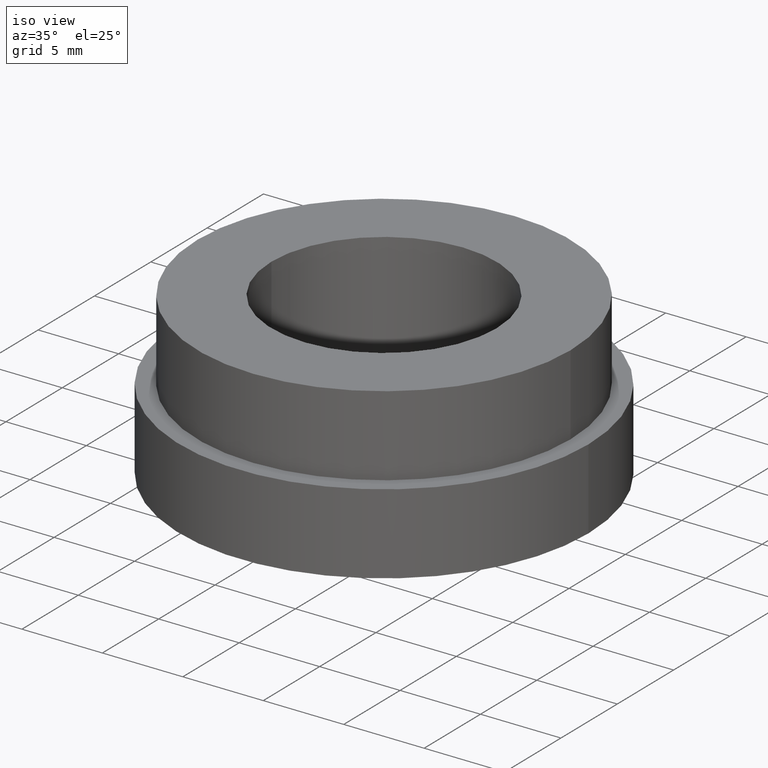
[diagram: clean part render]
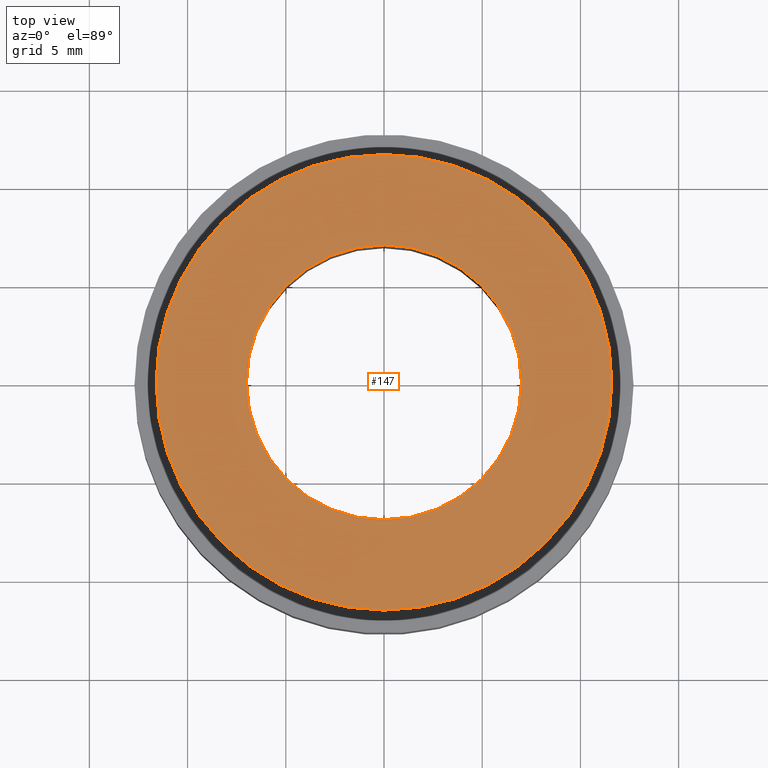
[diagram: tour spotlight — one face highlighted and labeled with its STEP entity id]
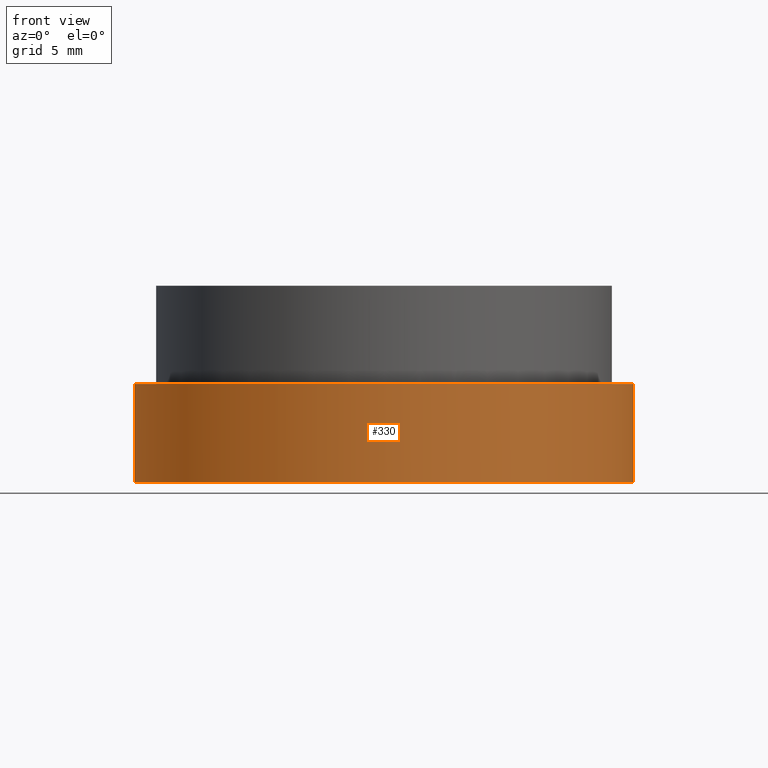
[diagram: tour spotlight — one face highlighted and labeled with its STEP entity id]
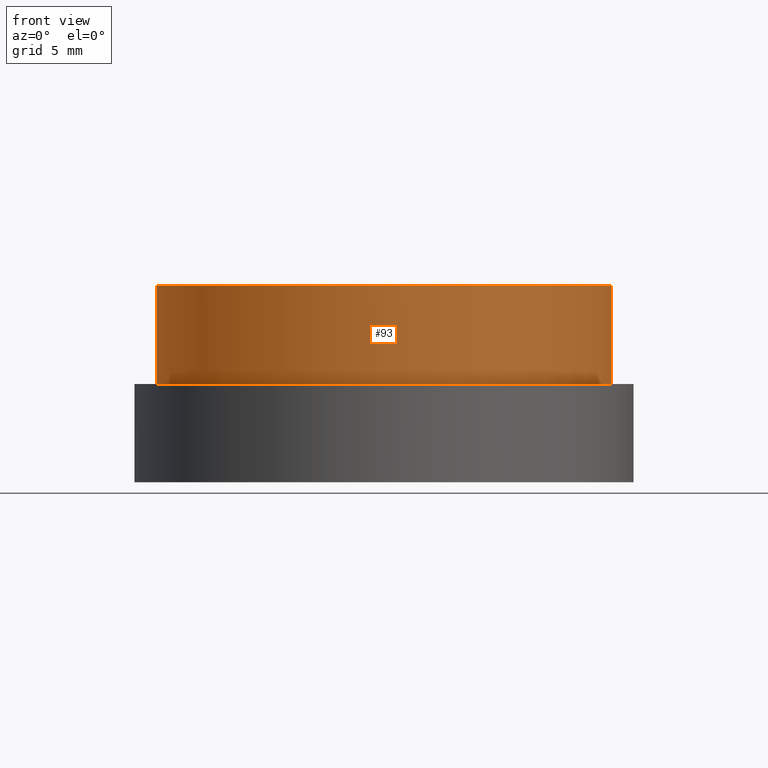
[diagram: tour spotlight — one face highlighted and labeled with its STEP entity id]
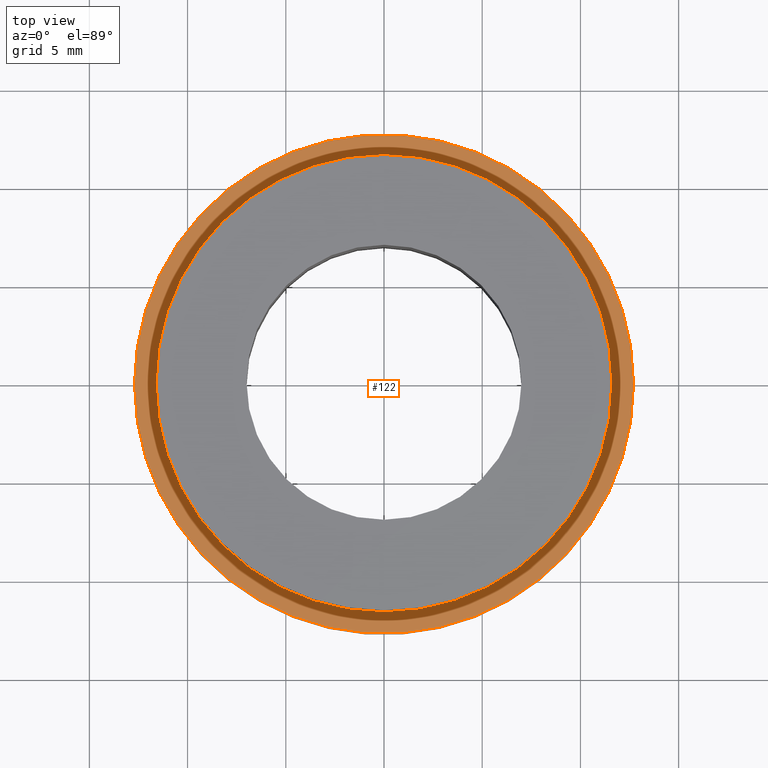
[diagram: tour spotlight — one face highlighted and labeled with its STEP entity id]
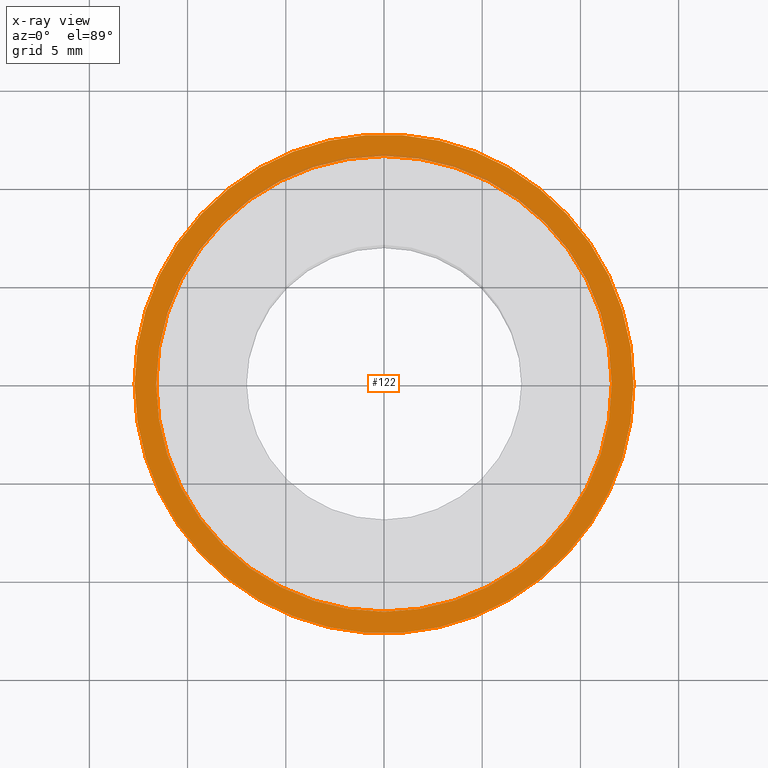
[diagram: x-ray of the same camera — body ghosted, this tour face saturated]
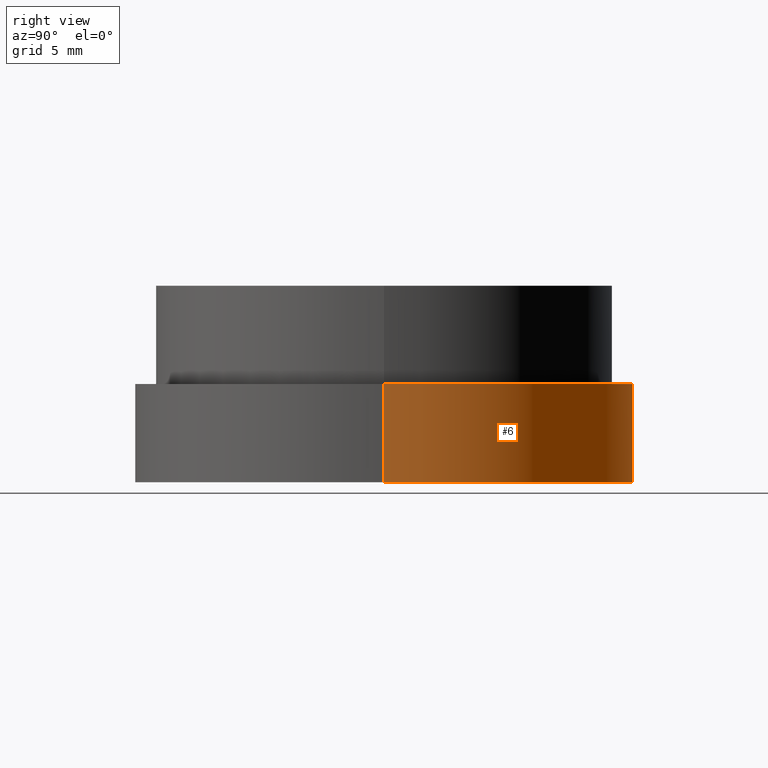
[diagram: tour spotlight — one face highlighted and labeled with its STEP entity id]
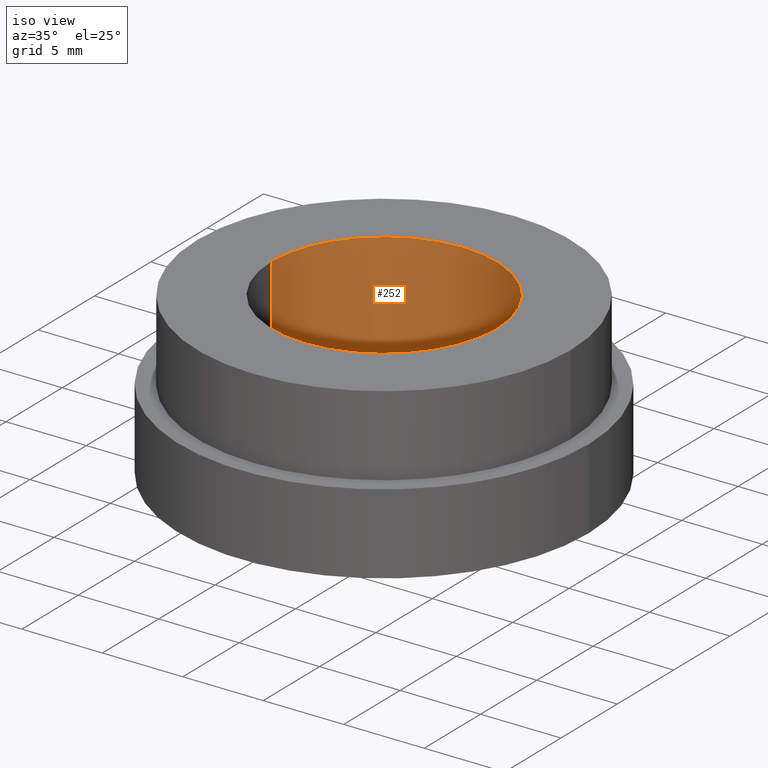
[diagram: tour spotlight — one face highlighted and labeled with its STEP entity id]
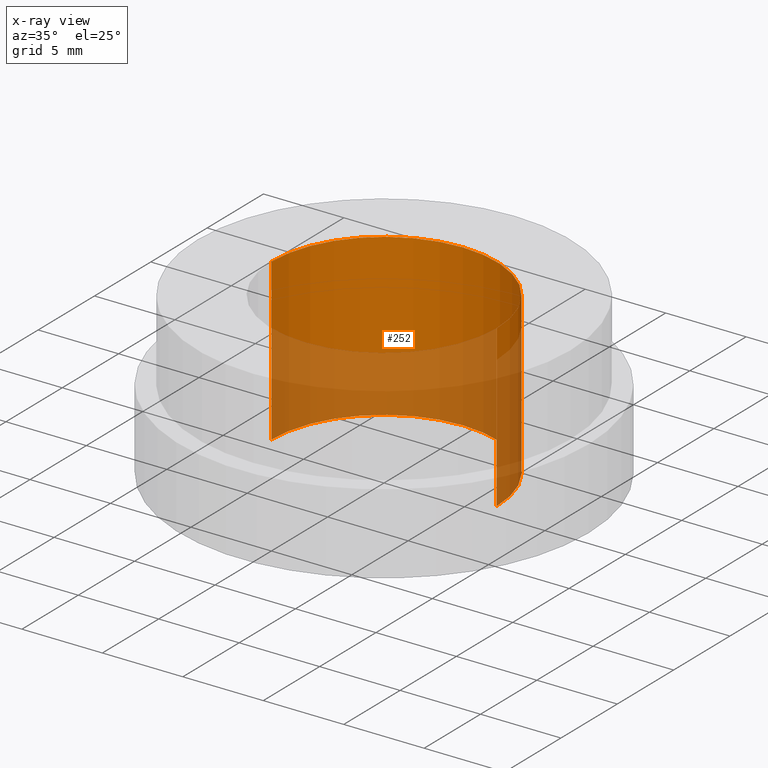
[diagram: x-ray of the same camera — body ghosted, this tour face saturated]
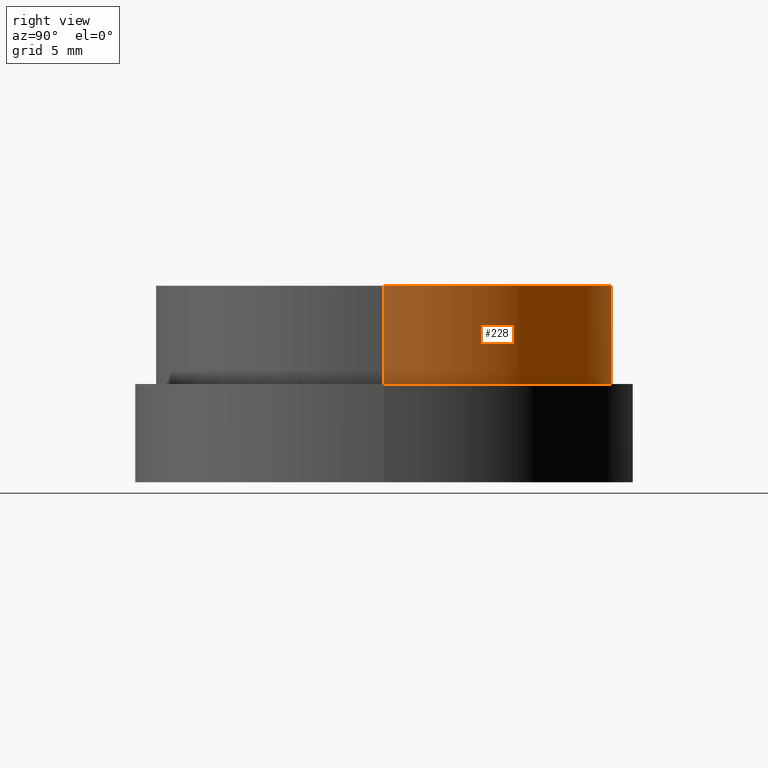
[diagram: tour spotlight — one face highlighted and labeled with its STEP entity id]
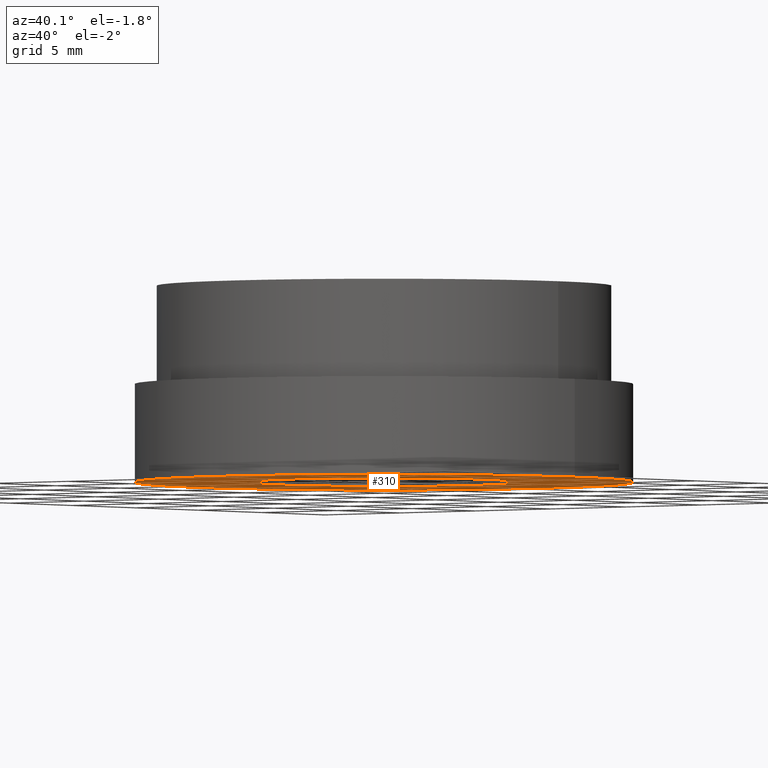
[diagram: tour spotlight — one face highlighted and labeled with its STEP entity id]
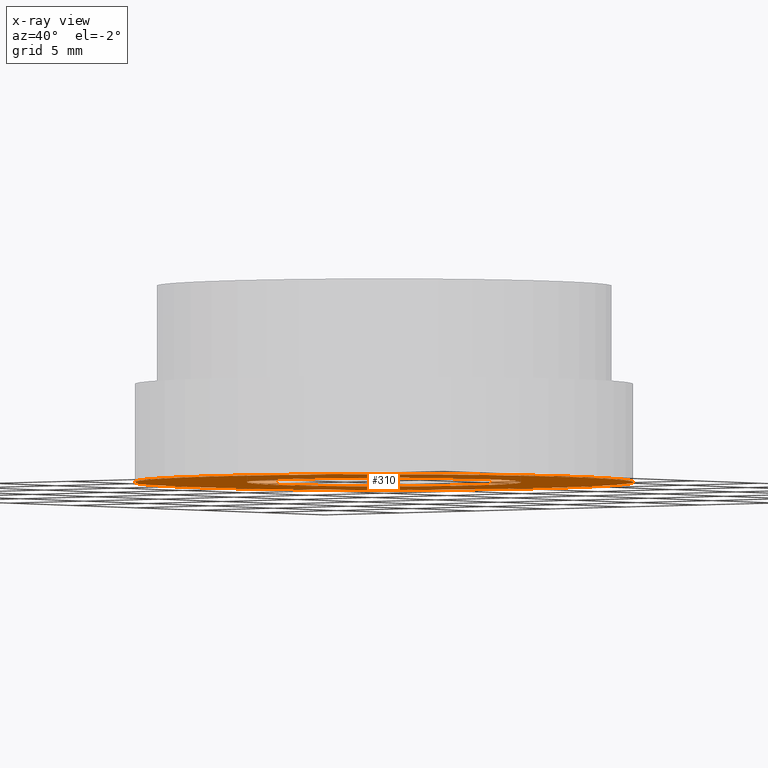
[diagram: x-ray of the same camera — body ghosted, this tour face saturated]
A machine part: a face-by-face anatomy tour. The part has 9 B-rep faces; the first image is the clean iso view, then the 8 largest visible faces are spotlighted one at a time (largest first), each with its STEP entity span.

Face 1 — top view, entity #147. In plain terms, the highlighted planar face has unit normal (-0, 0, -1).
Definition (entity closure, byte-faithful):
#11 = FACE_OUTER_BOUND ( 'NONE', #83, .T. ) ;
#13 = CARTESIAN_POINT ( 'NONE',  ( 0.0000000000000000000, 0.0000000000000000000, 0.0000000000000000000 ) ) ;
#25 = EDGE_CURVE ( 'NONE', #312, #139, #39, .T. ) ;
#35 = CARTESIAN_POINT ( 'NONE',  ( -7.000000000000001800, 0.0000000000000000000, 0.0000000000000000000 ) ) ;
#39 = CIRCLE ( 'NONE', #54, 11.60000000000000100 ) ;
#41 = DIRECTION ( 'NONE',  ( -0.0000000000000000000, -0.0000000000000000000, -1.000000000000000000 ) ) ;
#42 = ORIENTED_EDGE ( 'NONE', *, *, #152, .F. ) ;
#46 = ORIENTED_EDGE ( 'NONE', *, *, #78, .T. ) ;
#54 = AXIS2_PLACEMENT_3D ( 'NONE', #161, #130, #288 ) ;
#56 = EDGE_CURVE ( 'NONE', #197, #176, #125, .T. ) ;
#65 = CARTESIAN_POINT ( 'NONE',  ( 0.0000000000000000000, 0.0000000000000000000, 0.0000000000000000000 ) ) ;
#78 = EDGE_CURVE ( 'NONE', #176, #197, #290, .T. ) ;
#83 = EDGE_LOOP ( 'NONE', ( #317, #42 ) ) ;
#90 = FACE_BOUND ( 'NONE', #291, .T. ) ;
#120 = DIRECTION ( 'NONE',  ( -1.000000000000000000, 0.0000000000000000000, 0.0000000000000000000 ) ) ;
#124 = AXIS2_PLACEMENT_3D ( 'NONE', #234, #41, #207 ) ;
#125 = CIRCLE ( 'NONE', #205, 7.000000000000001800 ) ;
#130 = DIRECTION ( 'NONE',  ( -0.0000000000000000000, -0.0000000000000000000, -1.000000000000000000 ) ) ;
#139 = VERTEX_POINT ( 'NONE', #232 ) ;
#146 = DIRECTION ( 'NONE',  ( -0.0000000000000000000, -0.0000000000000000000, -1.000000000000000000 ) ) ;
#147 = ADVANCED_FACE ( 'NONE', ( #11, #90 ), #260, .F. ) ;
#152 = EDGE_CURVE ( 'NONE', #139, #312, #155, .T. ) ;
#154 = DIRECTION ( 'NONE',  ( -1.000000000000000000, 0.0000000000000000000, 0.0000000000000000000 ) ) ;
#155 = CIRCLE ( 'NONE', #295, 11.60000000000000100 ) ;
#161 = CARTESIAN_POINT ( 'NONE',  ( 0.0000000000000000000, 0.0000000000000000000, 0.0000000000000000000 ) ) ;
#175 = AXIS2_PLACEMENT_3D ( 'NONE', #238, #185, #341 ) ;
#176 = VERTEX_POINT ( 'NONE', #250 ) ;
#185 = DIRECTION ( 'NONE',  ( -0.0000000000000000000, 0.0000000000000000000, -1.000000000000000000 ) ) ;
#197 = VERTEX_POINT ( 'NONE', #35 ) ;
#205 = AXIS2_PLACEMENT_3D ( 'NONE', #13, #206, #154 ) ;
#206 = DIRECTION ( 'NONE',  ( -0.0000000000000000000, -0.0000000000000000000, -1.000000000000000000 ) ) ;
#207 = DIRECTION ( 'NONE',  ( -1.000000000000000000, 0.0000000000000000000, 0.0000000000000000000 ) ) ;
#232 = CARTESIAN_POINT ( 'NONE',  ( 11.60000000000000100, 1.420590287010929700E-015, 0.0000000000000000000 ) ) ;
#234 = CARTESIAN_POINT ( 'NONE',  ( 0.0000000000000000000, 0.0000000000000000000, 0.0000000000000000000 ) ) ;
#238 = CARTESIAN_POINT ( 'NONE',  ( 7.000000000000001800, 0.0000000000000000000, 0.0000000000000000000 ) ) ;
#250 = CARTESIAN_POINT ( 'NONE',  ( 7.000000000000001800, 8.572527594031474200E-016, 0.0000000000000000000 ) ) ;
#254 = ORIENTED_EDGE ( 'NONE', *, *, #56, .T. ) ;
#260 = PLANE ( 'NONE',  #175 ) ;
#267 = CARTESIAN_POINT ( 'NONE',  ( -11.60000000000000100, 0.0000000000000000000, 0.0000000000000000000 ) ) ;
#288 = DIRECTION ( 'NONE',  ( -1.000000000000000000, 0.0000000000000000000, 0.0000000000000000000 ) ) ;
#290 = CIRCLE ( 'NONE', #124, 7.000000000000001800 ) ;
#291 = EDGE_LOOP ( 'NONE', ( #254, #46 ) ) ;
#295 = AXIS2_PLACEMENT_3D ( 'NONE', #65, #146, #120 ) ;
#312 = VERTEX_POINT ( 'NONE', #267 ) ;
#317 = ORIENTED_EDGE ( 'NONE', *, *, #25, .F. ) ;
#341 = DIRECTION ( 'NONE',  ( -1.000000000000000000, 0.0000000000000000000, 0.0000000000000000000 ) ) ;

Face 2 — front view, entity #330. In plain terms, the highlighted cylindrical surface (partial cylindrical patch) has radius 12.7 mm, axis along (-0, -0, -1).
Definition (entity closure, byte-faithful):
#8 = VERTEX_POINT ( 'NONE', #343 ) ;
#10 = DIRECTION ( 'NONE',  ( -0.0000000000000000000, -0.0000000000000000000, -1.000000000000000000 ) ) ;
#27 = CARTESIAN_POINT ( 'NONE',  ( 0.0000000000000000000, 0.0000000000000000000, -19.14057971014493000 ) ) ;
#28 = AXIS2_PLACEMENT_3D ( 'NONE', #27, #167, #320 ) ;
#29 = DIRECTION ( 'NONE',  ( -0.0000000000000000000, -0.0000000000000000000, -1.000000000000000000 ) ) ;
#50 = FACE_OUTER_BOUND ( 'NONE', #344, .T. ) ;
#60 = VECTOR ( 'NONE', #111, 1000.000000000000000 ) ;
#62 = VECTOR ( 'NONE', #136, 1000.000000000000000 ) ;
#82 = CARTESIAN_POINT ( 'NONE',  ( 12.70000000000000300, 1.555301434917138800E-015, -10.00000000000000000 ) ) ;
#100 = CARTESIAN_POINT ( 'NONE',  ( 0.0000000000000000000, 0.0000000000000000000, -10.00000000000000000 ) ) ;
#111 = DIRECTION ( 'NONE',  ( -0.0000000000000000000, -0.0000000000000000000, -1.000000000000000000 ) ) ;
#121 = ORIENTED_EDGE ( 'NONE', *, *, #275, .T. ) ;
#136 = DIRECTION ( 'NONE',  ( -0.0000000000000000000, -0.0000000000000000000, -1.000000000000000000 ) ) ;
#150 = EDGE_CURVE ( 'NONE', #307, #237, #226, .T. ) ;
#164 = ORIENTED_EDGE ( 'NONE', *, *, #328, .F. ) ;
#167 = DIRECTION ( 'NONE',  ( -0.0000000000000000000, -0.0000000000000000000, -1.000000000000000000 ) ) ;
#191 = DIRECTION ( 'NONE',  ( -1.000000000000000000, 0.0000000000000000000, 0.0000000000000000000 ) ) ;
#217 = CARTESIAN_POINT ( 'NONE',  ( 12.69999999999999900, 1.555301434917138400E-015, -19.14057971014493000 ) ) ;
#218 = CARTESIAN_POINT ( 'NONE',  ( 0.0000000000000000000, 0.0000000000000000000, -5.000000000000000900 ) ) ;
#226 = CIRCLE ( 'NONE', #327, 12.70000000000000100 ) ;
#237 = VERTEX_POINT ( 'NONE', #301 ) ;
#256 = CYLINDRICAL_SURFACE ( 'NONE', #28, 12.69999999999999900 ) ;
#263 = LINE ( 'NONE', #298, #62 ) ;
#265 = LINE ( 'NONE', #217, #60 ) ;
#266 = CARTESIAN_POINT ( 'NONE',  ( -12.69999999999999900, 0.0000000000000000000, -5.000000000000000900 ) ) ;
#275 = EDGE_CURVE ( 'NONE', #8, #354, #331, .T. ) ;
#282 = ORIENTED_EDGE ( 'NONE', *, *, #336, .T. ) ;
#286 = AXIS2_PLACEMENT_3D ( 'NONE', #218, #29, #191 ) ;
#298 = CARTESIAN_POINT ( 'NONE',  ( -12.69999999999999900, 0.0000000000000000000, -19.14057971014493000 ) ) ;
#300 = ORIENTED_EDGE ( 'NONE', *, *, #150, .F. ) ;
#301 = CARTESIAN_POINT ( 'NONE',  ( -12.70000000000000100, 0.0000000000000000000, -10.00000000000000000 ) ) ;
#307 = VERTEX_POINT ( 'NONE', #82 ) ;
#320 = DIRECTION ( 'NONE',  ( -1.000000000000000000, 0.0000000000000000000, 0.0000000000000000000 ) ) ;
#327 = AXIS2_PLACEMENT_3D ( 'NONE', #100, #10, #332 ) ;
#328 = EDGE_CURVE ( 'NONE', #8, #307, #265, .T. ) ;
#330 = ADVANCED_FACE ( 'NONE', ( #50 ), #256, .T. ) ;
#331 = CIRCLE ( 'NONE', #286, 12.69999999999999900 ) ;
#332 = DIRECTION ( 'NONE',  ( -1.000000000000000000, 0.0000000000000000000, 0.0000000000000000000 ) ) ;
#336 = EDGE_CURVE ( 'NONE', #354, #237, #263, .T. ) ;
#343 = CARTESIAN_POINT ( 'NONE',  ( 12.69999999999999900, 1.555301434917138400E-015, -5.000000000000000900 ) ) ;
#344 = EDGE_LOOP ( 'NONE', ( #164, #121, #282, #300 ) ) ;
#354 = VERTEX_POINT ( 'NONE', #266 ) ;

Face 3 — front view, entity #93. In plain terms, the highlighted cylindrical surface (partial cylindrical patch) has radius 11.6 mm, axis along (-0, -0, -1).
Definition (entity closure, byte-faithful):
#30 = VERTEX_POINT ( 'NONE', #259 ) ;
#37 = AXIS2_PLACEMENT_3D ( 'NONE', #342, #181, #99 ) ;
#52 = EDGE_LOOP ( 'NONE', ( #231, #244, #129, #180 ) ) ;
#61 = DIRECTION ( 'NONE',  ( -0.0000000000000000000, -0.0000000000000000000, -1.000000000000000000 ) ) ;
#65 = CARTESIAN_POINT ( 'NONE',  ( 0.0000000000000000000, 0.0000000000000000000, 0.0000000000000000000 ) ) ;
#72 = VECTOR ( 'NONE', #198, 1000.000000000000000 ) ;
#74 = FACE_OUTER_BOUND ( 'NONE', #52, .T. ) ;
#89 = CARTESIAN_POINT ( 'NONE',  ( 11.60000000000000100, 1.420590287010929700E-015, -19.14057971014493000 ) ) ;
#93 = ADVANCED_FACE ( 'NONE', ( #74 ), #163, .T. ) ;
#99 = DIRECTION ( 'NONE',  ( -1.000000000000000000, 0.0000000000000000000, 0.0000000000000000000 ) ) ;
#120 = DIRECTION ( 'NONE',  ( -1.000000000000000000, 0.0000000000000000000, 0.0000000000000000000 ) ) ;
#129 = ORIENTED_EDGE ( 'NONE', *, *, #302, .T. ) ;
#139 = VERTEX_POINT ( 'NONE', #232 ) ;
#146 = DIRECTION ( 'NONE',  ( -0.0000000000000000000, -0.0000000000000000000, -1.000000000000000000 ) ) ;
#152 = EDGE_CURVE ( 'NONE', #139, #312, #155, .T. ) ;
#155 = CIRCLE ( 'NONE', #295, 11.60000000000000100 ) ;
#163 = CYLINDRICAL_SURFACE ( 'NONE', #37, 11.60000000000000100 ) ;
#174 = EDGE_CURVE ( 'NONE', #248, #30, #305, .T. ) ;
#180 = ORIENTED_EDGE ( 'NONE', *, *, #174, .F. ) ;
#181 = DIRECTION ( 'NONE',  ( -0.0000000000000000000, -0.0000000000000000000, -1.000000000000000000 ) ) ;
#186 = EDGE_CURVE ( 'NONE', #139, #248, #214, .T. ) ;
#188 = AXIS2_PLACEMENT_3D ( 'NONE', #249, #61, #224 ) ;
#198 = DIRECTION ( 'NONE',  ( -0.0000000000000000000, -0.0000000000000000000, -1.000000000000000000 ) ) ;
#214 = LINE ( 'NONE', #89, #72 ) ;
#224 = DIRECTION ( 'NONE',  ( -1.000000000000000000, 0.0000000000000000000, 0.0000000000000000000 ) ) ;
#231 = ORIENTED_EDGE ( 'NONE', *, *, #186, .F. ) ;
#232 = CARTESIAN_POINT ( 'NONE',  ( 11.60000000000000100, 1.420590287010929700E-015, 0.0000000000000000000 ) ) ;
#244 = ORIENTED_EDGE ( 'NONE', *, *, #152, .T. ) ;
#248 = VERTEX_POINT ( 'NONE', #323 ) ;
#249 = CARTESIAN_POINT ( 'NONE',  ( 0.0000000000000000000, 0.0000000000000000000, -5.000000000000000900 ) ) ;
#259 = CARTESIAN_POINT ( 'NONE',  ( -11.60000000000000100, 0.0000000000000000000, -5.000000000000000900 ) ) ;
#267 = CARTESIAN_POINT ( 'NONE',  ( -11.60000000000000100, 0.0000000000000000000, 0.0000000000000000000 ) ) ;
#279 = LINE ( 'NONE', #321, #349 ) ;
#295 = AXIS2_PLACEMENT_3D ( 'NONE', #65, #146, #120 ) ;
#299 = DIRECTION ( 'NONE',  ( -0.0000000000000000000, -0.0000000000000000000, -1.000000000000000000 ) ) ;
#302 = EDGE_CURVE ( 'NONE', #312, #30, #279, .T. ) ;
#305 = CIRCLE ( 'NONE', #188, 11.60000000000000100 ) ;
#312 = VERTEX_POINT ( 'NONE', #267 ) ;
#321 = CARTESIAN_POINT ( 'NONE',  ( -11.60000000000000100, 0.0000000000000000000, -19.14057971014493000 ) ) ;
#323 = CARTESIAN_POINT ( 'NONE',  ( 11.60000000000000100, 1.420590287010929700E-015, -5.000000000000000900 ) ) ;
#342 = CARTESIAN_POINT ( 'NONE',  ( 0.0000000000000000000, 0.0000000000000000000, -19.14057971014493000 ) ) ;
#349 = VECTOR ( 'NONE', #299, 1000.000000000000000 ) ;

Face 4 — top view, entity #122. An x-ray twin of the same camera follows (body ghosted, this face saturated) — the face is partly hidden behind the body. In plain terms, the highlighted planar face has unit normal (-0, 0, -1).
Definition (entity closure, byte-faithful):
#4 = EDGE_CURVE ( 'NONE', #30, #248, #162, .T. ) ;
#8 = VERTEX_POINT ( 'NONE', #343 ) ;
#20 = DIRECTION ( 'NONE',  ( -1.000000000000000000, 0.0000000000000000000, 0.0000000000000000000 ) ) ;
#22 = FACE_OUTER_BOUND ( 'NONE', #106, .T. ) ;
#29 = DIRECTION ( 'NONE',  ( -0.0000000000000000000, -0.0000000000000000000, -1.000000000000000000 ) ) ;
#30 = VERTEX_POINT ( 'NONE', #259 ) ;
#38 = AXIS2_PLACEMENT_3D ( 'NONE', #315, #159, #20 ) ;
#61 = DIRECTION ( 'NONE',  ( -0.0000000000000000000, -0.0000000000000000000, -1.000000000000000000 ) ) ;
#70 = PLANE ( 'NONE',  #348 ) ;
#94 = ORIENTED_EDGE ( 'NONE', *, *, #4, .T. ) ;
#96 = FACE_BOUND ( 'NONE', #151, .T. ) ;
#103 = ORIENTED_EDGE ( 'NONE', *, *, #275, .F. ) ;
#106 = EDGE_LOOP ( 'NONE', ( #333, #103 ) ) ;
#119 = DIRECTION ( 'NONE',  ( -1.000000000000000000, 0.0000000000000000000, 0.0000000000000000000 ) ) ;
#122 = ADVANCED_FACE ( 'NONE', ( #22, #96 ), #70, .F. ) ;
#143 = DIRECTION ( 'NONE',  ( -0.0000000000000000000, 0.0000000000000000000, -1.000000000000000000 ) ) ;
#151 = EDGE_LOOP ( 'NONE', ( #94, #271 ) ) ;
#153 = AXIS2_PLACEMENT_3D ( 'NONE', #199, #306, #119 ) ;
#157 = EDGE_CURVE ( 'NONE', #354, #8, #296, .T. ) ;
#159 = DIRECTION ( 'NONE',  ( -0.0000000000000000000, -0.0000000000000000000, -1.000000000000000000 ) ) ;
#162 = CIRCLE ( 'NONE', #38, 11.60000000000000100 ) ;
#174 = EDGE_CURVE ( 'NONE', #248, #30, #305, .T. ) ;
#177 = CARTESIAN_POINT ( 'NONE',  ( 11.60000000000000100, 0.0000000000000000000, -5.000000000000000000 ) ) ;
#188 = AXIS2_PLACEMENT_3D ( 'NONE', #249, #61, #224 ) ;
#191 = DIRECTION ( 'NONE',  ( -1.000000000000000000, 0.0000000000000000000, 0.0000000000000000000 ) ) ;
#199 = CARTESIAN_POINT ( 'NONE',  ( 0.0000000000000000000, 0.0000000000000000000, -5.000000000000000900 ) ) ;
#218 = CARTESIAN_POINT ( 'NONE',  ( 0.0000000000000000000, 0.0000000000000000000, -5.000000000000000900 ) ) ;
#224 = DIRECTION ( 'NONE',  ( -1.000000000000000000, 0.0000000000000000000, 0.0000000000000000000 ) ) ;
#248 = VERTEX_POINT ( 'NONE', #323 ) ;
#249 = CARTESIAN_POINT ( 'NONE',  ( 0.0000000000000000000, 0.0000000000000000000, -5.000000000000000900 ) ) ;
#259 = CARTESIAN_POINT ( 'NONE',  ( -11.60000000000000100, 0.0000000000000000000, -5.000000000000000900 ) ) ;
#266 = CARTESIAN_POINT ( 'NONE',  ( -12.69999999999999900, 0.0000000000000000000, -5.000000000000000900 ) ) ;
#271 = ORIENTED_EDGE ( 'NONE', *, *, #174, .T. ) ;
#275 = EDGE_CURVE ( 'NONE', #8, #354, #331, .T. ) ;
#286 = AXIS2_PLACEMENT_3D ( 'NONE', #218, #29, #191 ) ;
#296 = CIRCLE ( 'NONE', #153, 12.69999999999999900 ) ;
#305 = CIRCLE ( 'NONE', #188, 11.60000000000000100 ) ;
#306 = DIRECTION ( 'NONE',  ( -0.0000000000000000000, -0.0000000000000000000, -1.000000000000000000 ) ) ;
#315 = CARTESIAN_POINT ( 'NONE',  ( 0.0000000000000000000, 0.0000000000000000000, -5.000000000000000900 ) ) ;
#323 = CARTESIAN_POINT ( 'NONE',  ( 11.60000000000000100, 1.420590287010929700E-015, -5.000000000000000900 ) ) ;
#326 = DIRECTION ( 'NONE',  ( -1.000000000000000000, 0.0000000000000000000, 0.0000000000000000000 ) ) ;
#331 = CIRCLE ( 'NONE', #286, 12.69999999999999900 ) ;
#333 = ORIENTED_EDGE ( 'NONE', *, *, #157, .F. ) ;
#343 = CARTESIAN_POINT ( 'NONE',  ( 12.69999999999999900, 1.555301434917138400E-015, -5.000000000000000900 ) ) ;
#348 = AXIS2_PLACEMENT_3D ( 'NONE', #177, #143, #326 ) ;
#354 = VERTEX_POINT ( 'NONE', #266 ) ;

Face 5 — right view, entity #6. In plain terms, the highlighted cylindrical surface (partial cylindrical patch) has radius 12.7 mm, axis along (-0, -0, -1).
Definition (entity closure, byte-faithful):
#6 = ADVANCED_FACE ( 'NONE', ( #79 ), #149, .T. ) ;
#8 = VERTEX_POINT ( 'NONE', #343 ) ;
#17 = EDGE_CURVE ( 'NONE', #237, #307, #220, .T. ) ;
#19 = DIRECTION ( 'NONE',  ( -1.000000000000000000, 0.0000000000000000000, 0.0000000000000000000 ) ) ;
#44 = DIRECTION ( 'NONE',  ( -1.000000000000000000, 0.0000000000000000000, 0.0000000000000000000 ) ) ;
#60 = VECTOR ( 'NONE', #111, 1000.000000000000000 ) ;
#62 = VECTOR ( 'NONE', #136, 1000.000000000000000 ) ;
#73 = CARTESIAN_POINT ( 'NONE',  ( 0.0000000000000000000, 0.0000000000000000000, -10.00000000000000000 ) ) ;
#79 = FACE_OUTER_BOUND ( 'NONE', #329, .T. ) ;
#82 = CARTESIAN_POINT ( 'NONE',  ( 12.70000000000000300, 1.555301434917138800E-015, -10.00000000000000000 ) ) ;
#88 = AXIS2_PLACEMENT_3D ( 'NONE', #73, #236, #44 ) ;
#91 = ORIENTED_EDGE ( 'NONE', *, *, #17, .F. ) ;
#111 = DIRECTION ( 'NONE',  ( -0.0000000000000000000, -0.0000000000000000000, -1.000000000000000000 ) ) ;
#117 = ORIENTED_EDGE ( 'NONE', *, *, #157, .T. ) ;
#119 = DIRECTION ( 'NONE',  ( -1.000000000000000000, 0.0000000000000000000, 0.0000000000000000000 ) ) ;
#131 = DIRECTION ( 'NONE',  ( -0.0000000000000000000, -0.0000000000000000000, -1.000000000000000000 ) ) ;
#136 = DIRECTION ( 'NONE',  ( -0.0000000000000000000, -0.0000000000000000000, -1.000000000000000000 ) ) ;
#144 = ORIENTED_EDGE ( 'NONE', *, *, #336, .F. ) ;
#149 = CYLINDRICAL_SURFACE ( 'NONE', #350, 12.69999999999999900 ) ;
#153 = AXIS2_PLACEMENT_3D ( 'NONE', #199, #306, #119 ) ;
#157 = EDGE_CURVE ( 'NONE', #354, #8, #296, .T. ) ;
#199 = CARTESIAN_POINT ( 'NONE',  ( 0.0000000000000000000, 0.0000000000000000000, -5.000000000000000900 ) ) ;
#209 = CARTESIAN_POINT ( 'NONE',  ( 0.0000000000000000000, 0.0000000000000000000, -19.14057971014493000 ) ) ;
#210 = ORIENTED_EDGE ( 'NONE', *, *, #328, .T. ) ;
#217 = CARTESIAN_POINT ( 'NONE',  ( 12.69999999999999900, 1.555301434917138400E-015, -19.14057971014493000 ) ) ;
#220 = CIRCLE ( 'NONE', #88, 12.70000000000000100 ) ;
#236 = DIRECTION ( 'NONE',  ( -0.0000000000000000000, -0.0000000000000000000, -1.000000000000000000 ) ) ;
#237 = VERTEX_POINT ( 'NONE', #301 ) ;
#263 = LINE ( 'NONE', #298, #62 ) ;
#265 = LINE ( 'NONE', #217, #60 ) ;
#266 = CARTESIAN_POINT ( 'NONE',  ( -12.69999999999999900, 0.0000000000000000000, -5.000000000000000900 ) ) ;
#296 = CIRCLE ( 'NONE', #153, 12.69999999999999900 ) ;
#298 = CARTESIAN_POINT ( 'NONE',  ( -12.69999999999999900, 0.0000000000000000000, -19.14057971014493000 ) ) ;
#301 = CARTESIAN_POINT ( 'NONE',  ( -12.70000000000000100, 0.0000000000000000000, -10.00000000000000000 ) ) ;
#306 = DIRECTION ( 'NONE',  ( -0.0000000000000000000, -0.0000000000000000000, -1.000000000000000000 ) ) ;
#307 = VERTEX_POINT ( 'NONE', #82 ) ;
#328 = EDGE_CURVE ( 'NONE', #8, #307, #265, .T. ) ;
#329 = EDGE_LOOP ( 'NONE', ( #117, #210, #91, #144 ) ) ;
#336 = EDGE_CURVE ( 'NONE', #354, #237, #263, .T. ) ;
#343 = CARTESIAN_POINT ( 'NONE',  ( 12.69999999999999900, 1.555301434917138400E-015, -5.000000000000000900 ) ) ;
#350 = AXIS2_PLACEMENT_3D ( 'NONE', #209, #131, #19 ) ;
#354 = VERTEX_POINT ( 'NONE', #266 ) ;

Face 6 — iso view, entity #252. An x-ray twin of the same camera follows (body ghosted, this face saturated) — the face is partly hidden behind the body. In plain terms, the highlighted cylindrical surface (partial cylindrical patch) has radius 7 mm, axis along (-0, -0, -1).
Definition (entity closure, byte-faithful):
#13 = CARTESIAN_POINT ( 'NONE',  ( 0.0000000000000000000, 0.0000000000000000000, 0.0000000000000000000 ) ) ;
#23 = ORIENTED_EDGE ( 'NONE', *, *, #294, .T. ) ;
#26 = DIRECTION ( 'NONE',  ( -0.0000000000000000000, -0.0000000000000000000, -1.000000000000000000 ) ) ;
#35 = CARTESIAN_POINT ( 'NONE',  ( -7.000000000000001800, 0.0000000000000000000, 0.0000000000000000000 ) ) ;
#40 = ORIENTED_EDGE ( 'NONE', *, *, #347, .F. ) ;
#47 = LINE ( 'NONE', #84, #170 ) ;
#51 = CARTESIAN_POINT ( 'NONE',  ( 7.000000000000002700, 8.572527594031475200E-016, -19.14057971014493000 ) ) ;
#56 = EDGE_CURVE ( 'NONE', #197, #176, #125, .T. ) ;
#63 = ORIENTED_EDGE ( 'NONE', *, *, #56, .F. ) ;
#66 = ORIENTED_EDGE ( 'NONE', *, *, #202, .T. ) ;
#84 = CARTESIAN_POINT ( 'NONE',  ( -7.000000000000002700, 0.0000000000000000000, -19.14057971014493000 ) ) ;
#86 = DIRECTION ( 'NONE',  ( -1.000000000000000000, 0.0000000000000000000, 0.0000000000000000000 ) ) ;
#105 = VECTOR ( 'NONE', #26, 1000.000000000000000 ) ;
#113 = CARTESIAN_POINT ( 'NONE',  ( -7.000000000000002700, 0.0000000000000000000, -9.999999999999998200 ) ) ;
#115 = CARTESIAN_POINT ( 'NONE',  ( 0.0000000000000000000, 0.0000000000000000000, -9.999999999999998200 ) ) ;
#125 = CIRCLE ( 'NONE', #205, 7.000000000000001800 ) ;
#137 = CYLINDRICAL_SURFACE ( 'NONE', #309, 7.000000000000002700 ) ;
#138 = DIRECTION ( 'NONE',  ( -0.0000000000000000000, -0.0000000000000000000, -1.000000000000000000 ) ) ;
#154 = DIRECTION ( 'NONE',  ( -1.000000000000000000, 0.0000000000000000000, 0.0000000000000000000 ) ) ;
#168 = DIRECTION ( 'NONE',  ( -0.0000000000000000000, -0.0000000000000000000, -1.000000000000000000 ) ) ;
#169 = CARTESIAN_POINT ( 'NONE',  ( 0.0000000000000000000, 0.0000000000000000000, -19.14057971014493000 ) ) ;
#170 = VECTOR ( 'NONE', #168, 1000.000000000000000 ) ;
#172 = FACE_OUTER_BOUND ( 'NONE', #187, .T. ) ;
#176 = VERTEX_POINT ( 'NONE', #250 ) ;
#187 = EDGE_LOOP ( 'NONE', ( #40, #63, #23, #66 ) ) ;
#197 = VERTEX_POINT ( 'NONE', #35 ) ;
#202 = EDGE_CURVE ( 'NONE', #262, #285, #204, .T. ) ;
#204 = CIRCLE ( 'NONE', #241, 7.000000000000002700 ) ;
#205 = AXIS2_PLACEMENT_3D ( 'NONE', #13, #206, #154 ) ;
#206 = DIRECTION ( 'NONE',  ( -0.0000000000000000000, -0.0000000000000000000, -1.000000000000000000 ) ) ;
#241 = AXIS2_PLACEMENT_3D ( 'NONE', #115, #270, #86 ) ;
#250 = CARTESIAN_POINT ( 'NONE',  ( 7.000000000000001800, 8.572527594031474200E-016, 0.0000000000000000000 ) ) ;
#252 = ADVANCED_FACE ( 'NONE', ( #172 ), #137, .F. ) ;
#262 = VERTEX_POINT ( 'NONE', #113 ) ;
#268 = CARTESIAN_POINT ( 'NONE',  ( 7.000000000000002700, 8.572527594031475200E-016, -9.999999999999998200 ) ) ;
#270 = DIRECTION ( 'NONE',  ( -0.0000000000000000000, -0.0000000000000000000, -1.000000000000000000 ) ) ;
#285 = VERTEX_POINT ( 'NONE', #268 ) ;
#294 = EDGE_CURVE ( 'NONE', #197, #262, #47, .T. ) ;
#309 = AXIS2_PLACEMENT_3D ( 'NONE', #169, #138, #322 ) ;
#322 = DIRECTION ( 'NONE',  ( -1.000000000000000000, 0.0000000000000000000, 0.0000000000000000000 ) ) ;
#335 = LINE ( 'NONE', #51, #105 ) ;
#347 = EDGE_CURVE ( 'NONE', #176, #285, #335, .T. ) ;

Face 7 — right view, entity #228. In plain terms, the highlighted cylindrical surface (partial cylindrical patch) has radius 11.6 mm, axis along (-0, -0, -1).
Definition (entity closure, byte-faithful):
#4 = EDGE_CURVE ( 'NONE', #30, #248, #162, .T. ) ;
#20 = DIRECTION ( 'NONE',  ( -1.000000000000000000, 0.0000000000000000000, 0.0000000000000000000 ) ) ;
#25 = EDGE_CURVE ( 'NONE', #312, #139, #39, .T. ) ;
#30 = VERTEX_POINT ( 'NONE', #259 ) ;
#32 = CYLINDRICAL_SURFACE ( 'NONE', #215, 11.60000000000000100 ) ;
#36 = ORIENTED_EDGE ( 'NONE', *, *, #186, .T. ) ;
#38 = AXIS2_PLACEMENT_3D ( 'NONE', #315, #159, #20 ) ;
#39 = CIRCLE ( 'NONE', #54, 11.60000000000000100 ) ;
#54 = AXIS2_PLACEMENT_3D ( 'NONE', #161, #130, #288 ) ;
#72 = VECTOR ( 'NONE', #198, 1000.000000000000000 ) ;
#75 = EDGE_LOOP ( 'NONE', ( #221, #36, #112, #85 ) ) ;
#85 = ORIENTED_EDGE ( 'NONE', *, *, #302, .F. ) ;
#89 = CARTESIAN_POINT ( 'NONE',  ( 11.60000000000000100, 1.420590287010929700E-015, -19.14057971014493000 ) ) ;
#112 = ORIENTED_EDGE ( 'NONE', *, *, #4, .F. ) ;
#130 = DIRECTION ( 'NONE',  ( -0.0000000000000000000, -0.0000000000000000000, -1.000000000000000000 ) ) ;
#139 = VERTEX_POINT ( 'NONE', #232 ) ;
#140 = DIRECTION ( 'NONE',  ( -0.0000000000000000000, -0.0000000000000000000, -1.000000000000000000 ) ) ;
#141 = FACE_OUTER_BOUND ( 'NONE', #75, .T. ) ;
#159 = DIRECTION ( 'NONE',  ( -0.0000000000000000000, -0.0000000000000000000, -1.000000000000000000 ) ) ;
#161 = CARTESIAN_POINT ( 'NONE',  ( 0.0000000000000000000, 0.0000000000000000000, 0.0000000000000000000 ) ) ;
#162 = CIRCLE ( 'NONE', #38, 11.60000000000000100 ) ;
#171 = DIRECTION ( 'NONE',  ( -1.000000000000000000, 0.0000000000000000000, 0.0000000000000000000 ) ) ;
#186 = EDGE_CURVE ( 'NONE', #139, #248, #214, .T. ) ;
#198 = DIRECTION ( 'NONE',  ( -0.0000000000000000000, -0.0000000000000000000, -1.000000000000000000 ) ) ;
#214 = LINE ( 'NONE', #89, #72 ) ;
#215 = AXIS2_PLACEMENT_3D ( 'NONE', #303, #140, #171 ) ;
#221 = ORIENTED_EDGE ( 'NONE', *, *, #25, .T. ) ;
#228 = ADVANCED_FACE ( 'NONE', ( #141 ), #32, .T. ) ;
#232 = CARTESIAN_POINT ( 'NONE',  ( 11.60000000000000100, 1.420590287010929700E-015, 0.0000000000000000000 ) ) ;
#248 = VERTEX_POINT ( 'NONE', #323 ) ;
#259 = CARTESIAN_POINT ( 'NONE',  ( -11.60000000000000100, 0.0000000000000000000, -5.000000000000000900 ) ) ;
#267 = CARTESIAN_POINT ( 'NONE',  ( -11.60000000000000100, 0.0000000000000000000, 0.0000000000000000000 ) ) ;
#279 = LINE ( 'NONE', #321, #349 ) ;
#288 = DIRECTION ( 'NONE',  ( -1.000000000000000000, 0.0000000000000000000, 0.0000000000000000000 ) ) ;
#299 = DIRECTION ( 'NONE',  ( -0.0000000000000000000, -0.0000000000000000000, -1.000000000000000000 ) ) ;
#302 = EDGE_CURVE ( 'NONE', #312, #30, #279, .T. ) ;
#303 = CARTESIAN_POINT ( 'NONE',  ( 0.0000000000000000000, 0.0000000000000000000, -19.14057971014493000 ) ) ;
#312 = VERTEX_POINT ( 'NONE', #267 ) ;
#315 = CARTESIAN_POINT ( 'NONE',  ( 0.0000000000000000000, 0.0000000000000000000, -5.000000000000000900 ) ) ;
#321 = CARTESIAN_POINT ( 'NONE',  ( -11.60000000000000100, 0.0000000000000000000, -19.14057971014493000 ) ) ;
#323 = CARTESIAN_POINT ( 'NONE',  ( 11.60000000000000100, 1.420590287010929700E-015, -5.000000000000000900 ) ) ;
#349 = VECTOR ( 'NONE', #299, 1000.000000000000000 ) ;

Face 8 — auxiliary view, entity #310. An x-ray twin of the same camera follows (body ghosted, this face saturated) — the face is partly hidden behind the body. In plain terms, the highlighted planar face has unit normal (0, 0, 1).
Definition (entity closure, byte-faithful):
#9 = ORIENTED_EDGE ( 'NONE', *, *, #202, .F. ) ;
#10 = DIRECTION ( 'NONE',  ( -0.0000000000000000000, -0.0000000000000000000, -1.000000000000000000 ) ) ;
#17 = EDGE_CURVE ( 'NONE', #237, #307, #220, .T. ) ;
#44 = DIRECTION ( 'NONE',  ( -1.000000000000000000, 0.0000000000000000000, 0.0000000000000000000 ) ) ;
#49 = AXIS2_PLACEMENT_3D ( 'NONE', #273, #308, #278 ) ;
#53 = DIRECTION ( 'NONE',  ( 1.000000000000000000, 0.0000000000000000000, -0.0000000000000000000 ) ) ;
#73 = CARTESIAN_POINT ( 'NONE',  ( 0.0000000000000000000, 0.0000000000000000000, -10.00000000000000000 ) ) ;
#80 = PLANE ( 'NONE',  #340 ) ;
#82 = CARTESIAN_POINT ( 'NONE',  ( 12.70000000000000300, 1.555301434917138800E-015, -10.00000000000000000 ) ) ;
#86 = DIRECTION ( 'NONE',  ( -1.000000000000000000, 0.0000000000000000000, 0.0000000000000000000 ) ) ;
#88 = AXIS2_PLACEMENT_3D ( 'NONE', #73, #236, #44 ) ;
#97 = EDGE_LOOP ( 'NONE', ( #240, #203 ) ) ;
#98 = EDGE_CURVE ( 'NONE', #285, #262, #230, .T. ) ;
#100 = CARTESIAN_POINT ( 'NONE',  ( 0.0000000000000000000, 0.0000000000000000000, -10.00000000000000000 ) ) ;
#113 = CARTESIAN_POINT ( 'NONE',  ( -7.000000000000002700, 0.0000000000000000000, -9.999999999999998200 ) ) ;
#115 = CARTESIAN_POINT ( 'NONE',  ( 0.0000000000000000000, 0.0000000000000000000, -9.999999999999998200 ) ) ;
#123 = FACE_BOUND ( 'NONE', #325, .T. ) ;
#150 = EDGE_CURVE ( 'NONE', #307, #237, #226, .T. ) ;
#202 = EDGE_CURVE ( 'NONE', #262, #285, #204, .T. ) ;
#203 = ORIENTED_EDGE ( 'NONE', *, *, #150, .T. ) ;
#204 = CIRCLE ( 'NONE', #241, 7.000000000000002700 ) ;
#220 = CIRCLE ( 'NONE', #88, 12.70000000000000100 ) ;
#226 = CIRCLE ( 'NONE', #327, 12.70000000000000100 ) ;
#227 = ORIENTED_EDGE ( 'NONE', *, *, #98, .F. ) ;
#230 = CIRCLE ( 'NONE', #49, 7.000000000000002700 ) ;
#236 = DIRECTION ( 'NONE',  ( -0.0000000000000000000, -0.0000000000000000000, -1.000000000000000000 ) ) ;
#237 = VERTEX_POINT ( 'NONE', #301 ) ;
#240 = ORIENTED_EDGE ( 'NONE', *, *, #17, .T. ) ;
#241 = AXIS2_PLACEMENT_3D ( 'NONE', #115, #270, #86 ) ;
#243 = DIRECTION ( 'NONE',  ( 0.0000000000000000000, 0.0000000000000000000, 1.000000000000000000 ) ) ;
#258 = FACE_OUTER_BOUND ( 'NONE', #97, .T. ) ;
#262 = VERTEX_POINT ( 'NONE', #113 ) ;
#268 = CARTESIAN_POINT ( 'NONE',  ( 7.000000000000002700, 8.572527594031475200E-016, -9.999999999999998200 ) ) ;
#270 = DIRECTION ( 'NONE',  ( -0.0000000000000000000, -0.0000000000000000000, -1.000000000000000000 ) ) ;
#273 = CARTESIAN_POINT ( 'NONE',  ( 0.0000000000000000000, 0.0000000000000000000, -9.999999999999998200 ) ) ;
#278 = DIRECTION ( 'NONE',  ( -1.000000000000000000, 0.0000000000000000000, 0.0000000000000000000 ) ) ;
#285 = VERTEX_POINT ( 'NONE', #268 ) ;
#301 = CARTESIAN_POINT ( 'NONE',  ( -12.70000000000000100, 0.0000000000000000000, -10.00000000000000000 ) ) ;
#307 = VERTEX_POINT ( 'NONE', #82 ) ;
#308 = DIRECTION ( 'NONE',  ( -0.0000000000000000000, -0.0000000000000000000, -1.000000000000000000 ) ) ;
#310 = ADVANCED_FACE ( 'NONE', ( #123, #258 ), #80, .F. ) ;
#325 = EDGE_LOOP ( 'NONE', ( #9, #227 ) ) ;
#327 = AXIS2_PLACEMENT_3D ( 'NONE', #100, #10, #332 ) ;
#332 = DIRECTION ( 'NONE',  ( -1.000000000000000000, 0.0000000000000000000, 0.0000000000000000000 ) ) ;
#340 = AXIS2_PLACEMENT_3D ( 'NONE', #351, #243, #53 ) ;
#351 = CARTESIAN_POINT ( 'NONE',  ( 12.70000000000000100, 0.0000000000000000000, -9.999999999999998200 ) ) ;